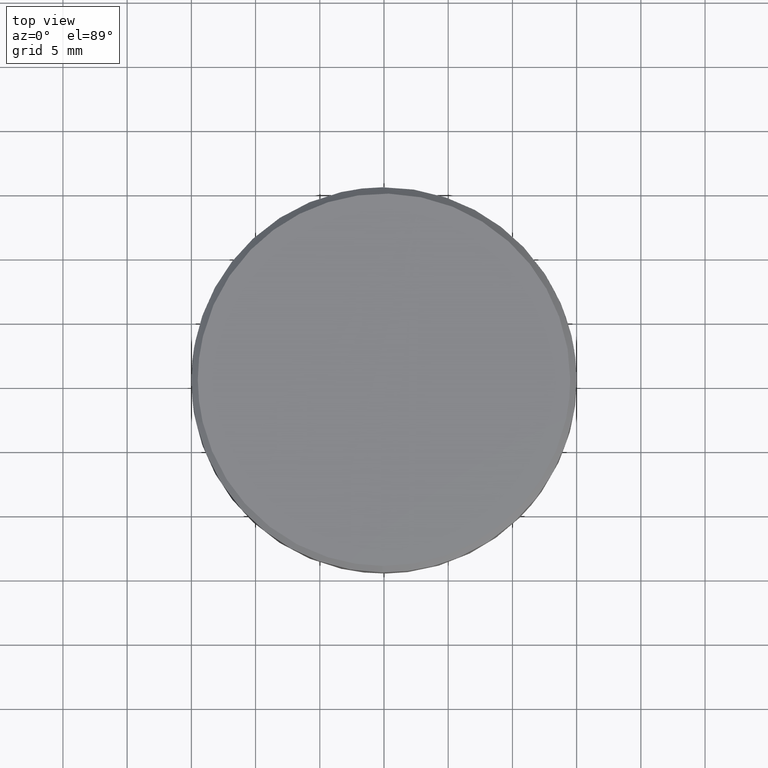
[diagram: clean part render]
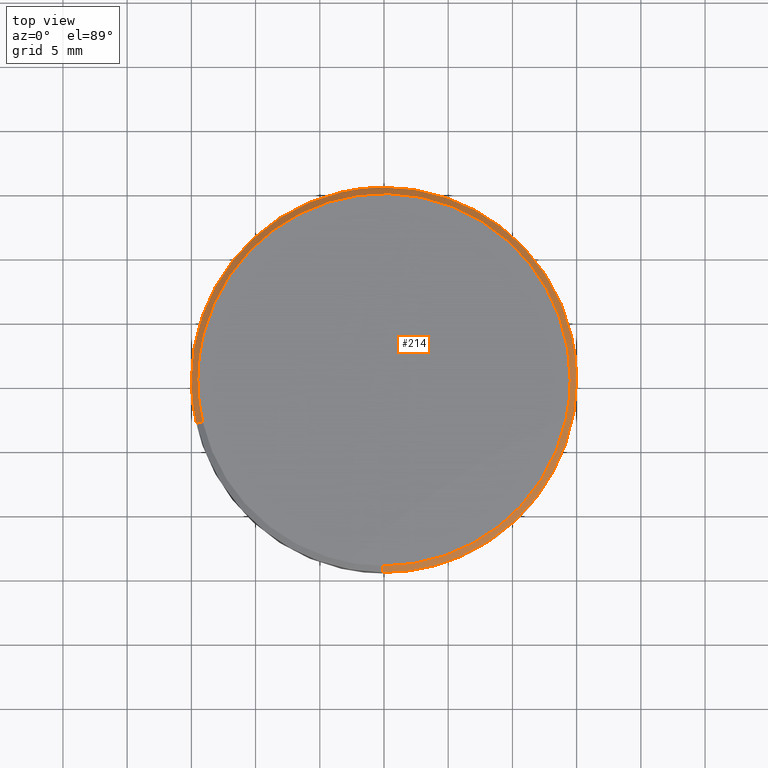
[diagram: same view with one face highlighted and labeled with its STEP entity id]
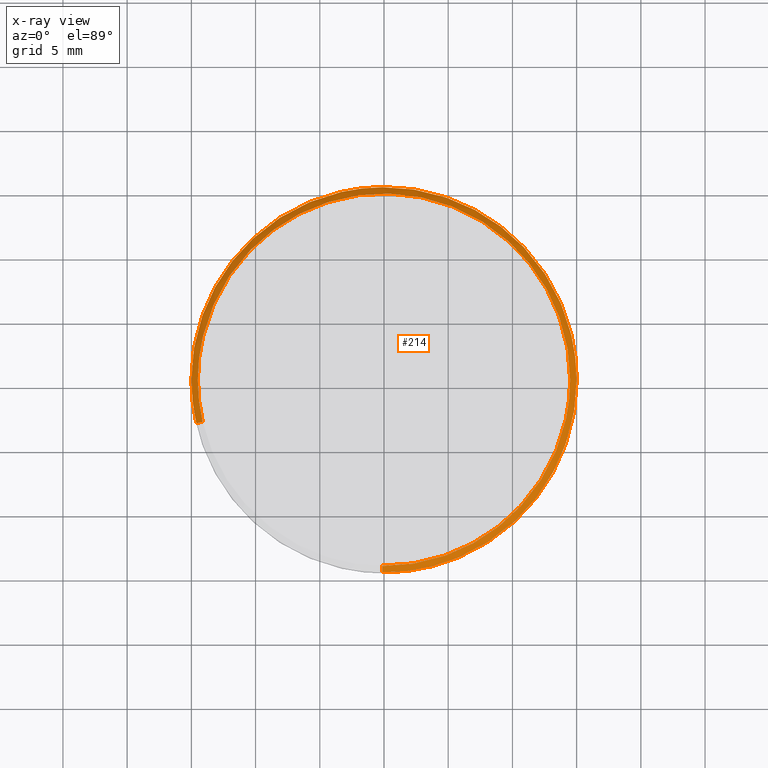
[diagram: x-ray of the same camera — body ghosted, the highlighted face saturated]
A machine part, top view. The second image highlights one B-rep face of the part: STEP entity #214.
The next image is the same camera in x-ray: the body ghosted, the highlighted face saturated — about 0% of this face is hidden behind the body in this view.
In plain terms, the highlighted face is a freeform B-spline surface patch.
Its self-contained STEP definition (entity closure, byte-faithful):
#44=CARTESIAN_POINT('',(-14.113985494174887,-3.268496553497049,18.012499999999999));
#45=CARTESIAN_POINT('',(-14.501955050900259,-1.593170725190882,18.012499999999999));
#46=CARTESIAN_POINT('',(-14.486948360392230,0.126425683032692,18.012499999999999));
#47=CARTESIAN_POINT('',(-14.360522677359546,14.613374043424921,18.012500000000003));
#48=CARTESIAN_POINT('',(0.126425683032692,14.486948360392230,18.012499999999999));
#49=CARTESIAN_POINT('',(14.613374043424921,14.360522677359546,18.012500000000003));
#50=CARTESIAN_POINT('',(14.486948360392230,-0.126425683032692,18.012499999999999));
#51=CARTESIAN_POINT('',(14.360522677359546,-14.613374043424921,18.012500000000003));
#52=CARTESIAN_POINT('',(-0.126425683032692,-14.486948360392230,18.012499999999999));
#53=CARTESIAN_POINT('',(-14.625754467766466,-3.387011279692647,17.487187499999997));
#54=CARTESIAN_POINT('',(-15.027791686805363,-1.650938628319562,17.487187500000001));
#55=CARTESIAN_POINT('',(-15.012240858101830,0.131009841211681,17.487187500000001));
#56=CARTESIAN_POINT('',(-14.881231016890139,15.143250699313507,17.487187500000001));
#57=CARTESIAN_POINT('',(0.131009841211681,15.012240858101830,17.487187500000001));
#58=CARTESIAN_POINT('',(15.143250699313507,14.881231016890139,17.487187500000001));
#59=CARTESIAN_POINT('',(15.012240858101830,-0.131009841211681,17.487187500000001));
#60=CARTESIAN_POINT('',(14.881231016890139,-15.143250699313507,17.487187500000001));
#61=CARTESIAN_POINT('',(-0.131009841211681,-15.012240858101830,17.487187500000001));
#69=(BOUNDED_SURFACE()B_SPLINE_SURFACE(2,1,((#44,#53),(#45,#54),(#46,#55),(#47,#56),(#48,#57),(#49,#58),(#50,#59),(#51,#60),(#52,#61)),.UNSPECIFIED.,.F.,.F.,.U.)B_SPLINE_SURFACE_WITH_KNOTS((3,2,2,2,3),(2,2),(0.0,3.979846749993173,28.853888937450488,53.727931124907812,78.601973312365132),(0.0,1.0),.UNSPECIFIED.)GEOMETRIC_REPRESENTATION_ITEM()RATIONAL_B_SPLINE_SURFACE(((0.921270302782944,0.921270302782944),(0.953137084989848,0.953137084989848),(1.0,1.0),(0.707106781186548,0.707106781186548),(1.0,1.0),(0.707106781186548,0.707106781186548),(1.0,1.0),(0.707106781186548,0.707106781186548),(1.0,1.0)))REPRESENTATION_ITEM('')SURFACE());
#70=CARTESIAN_POINT('',(-14.613272297676840,-3.384120676632547,17.499999999997950));
#71=VERTEX_POINT('',#70);
#72=CARTESIAN_POINT('',(-15.0,0.0,17.500000000000000));
#73=VERTEX_POINT('',#72);
#74=CARTESIAN_POINT('',(-14.613272297676838,-3.384120676632548,17.499999999997950));
#75=CARTESIAN_POINT('',(-14.999999999999996,-1.714157410214153,17.500000000000004));
#76=CARTESIAN_POINT('',(-15.0,0.0,17.500000000000000));
#84=(BOUNDED_CURVE()B_SPLINE_CURVE(2,(#74,#75,#76),.UNSPECIFIED.,.F.,.U.)B_SPLINE_CURVE_WITH_KNOTS((3,3),(0.961422971784221,1.0),.UNSPECIFIED.)CURVE()GEOMETRIC_REPRESENTATION_ITEM()RATIONAL_B_SPLINE_CURVE((0.923556557442156,0.954804200134492,1.0))REPRESENTATION_ITEM(''));
#85=EDGE_CURVE('',#71,#73,#84,.T.);
#86=ORIENTED_EDGE('',*,*,#85,.F.);
#87=CARTESIAN_POINT('',(-14.126163221086429,-3.271316654088644,17.999999999996831));
#88=VERTEX_POINT('',#87);
#89=CARTESIAN_POINT('',(-14.126163221086429,-3.271316654088644,17.999999999996831));
#90=CARTESIAN_POINT('',(-14.613272297676840,-3.384120676632547,17.499999999997950));
#91=QUASI_UNIFORM_CURVE('',1,(#89,#90),.UNSPECIFIED.,.F.,.U.);
#92=EDGE_CURVE('',#88,#71,#91,.T.);
#93=ORIENTED_EDGE('',*,*,#92,.F.);
#94=CARTESIAN_POINT('',(-14.500000000000000,0.0,18.0));
#95=VERTEX_POINT('',#94);
#96=CARTESIAN_POINT('',(-14.500000000000000,0.0,18.0));
#97=CARTESIAN_POINT('',(-14.500000000000004,-1.657018829884324,18.000000000000004));
#98=CARTESIAN_POINT('',(-14.126163221086427,-3.271316654088645,17.999999999996835));
#106=(BOUNDED_CURVE()B_SPLINE_CURVE(2,(#96,#97,#98),.UNSPECIFIED.,.F.,.U.)B_SPLINE_CURVE_WITH_KNOTS((3,3),(0.500000000000000,0.538577028216016),.UNSPECIFIED.)CURVE()GEOMETRIC_REPRESENTATION_ITEM()RATIONAL_B_SPLINE_CURVE((1.0,0.954804200134215,0.923556557441772))REPRESENTATION_ITEM(''));
#107=EDGE_CURVE('',#95,#88,#106,.T.);
#108=ORIENTED_EDGE('',*,*,#107,.F.);
#109=CARTESIAN_POINT('',(14.500000000000000,0.0,18.0));
#110=VERTEX_POINT('',#109);
#111=CARTESIAN_POINT('',(14.500000000000000,0.0,18.0));
#112=CARTESIAN_POINT('',(14.500000000000000,14.500000000000000,18.000000000000007));
#113=CARTESIAN_POINT('',(0.0,14.500000000000000,18.0));
#114=CARTESIAN_POINT('',(-14.500000000000000,14.500000000000000,18.000000000000007));
#115=CARTESIAN_POINT('',(-14.500000000000000,0.0,18.0));
#123=(BOUNDED_CURVE()B_SPLINE_CURVE(2,(#111,#112,#113,#114,#115),.UNSPECIFIED.,.F.,.U.)B_SPLINE_CURVE_WITH_KNOTS((3,2,3),(0.0,0.250000000000000,0.500000000000000),.UNSPECIFIED.)CURVE()GEOMETRIC_REPRESENTATION_ITEM()RATIONAL_B_SPLINE_CURVE((1.0,0.707106781186548,1.0,0.707106781186548,1.0))REPRESENTATION_ITEM(''));
#124=EDGE_CURVE('',#110,#95,#123,.T.);
#125=ORIENTED_EDGE('',*,*,#124,.F.);
#126=CARTESIAN_POINT('',(-0.126534764762240,-14.499447884435060,17.999999999995140));
#127=VERTEX_POINT('',#126);
#128=CARTESIAN_POINT('',(-0.126534764762240,-14.499447884435062,17.999999999995136));
#129=CARTESIAN_POINT('',(-0.063268586935950,-14.500000000000002,18.000000000000004));
#130=CARTESIAN_POINT('',(0.0,-14.500000000000000,18.0));
#131=CARTESIAN_POINT('',(14.500000000000000,-14.500000000000000,18.000000000000007));
#132=CARTESIAN_POINT('',(14.500000000000000,0.0,18.0));
#140=(BOUNDED_CURVE()B_SPLINE_CURVE(2,(#128,#129,#130,#131,#132),.UNSPECIFIED.,.F.,.U.)B_SPLINE_CURVE_WITH_KNOTS((3,2,3),(0.748460105664144,0.750000000000000,1.0),.UNSPECIFIED.)CURVE()GEOMETRIC_REPRESENTATION_ITEM()RATIONAL_B_SPLINE_CURVE((0.996414028098394,0.998195901565354,1.0,0.707106781186548,1.0))REPRESENTATION_ITEM(''));
#141=EDGE_CURVE('',#127,#110,#140,.T.);
#142=ORIENTED_EDGE('',*,*,#141,.F.);
#143=CARTESIAN_POINT('',(-0.130898032526533,-14.999428845969049,17.499999999993079));
#144=VERTEX_POINT('',#143);
#145=CARTESIAN_POINT('',(-0.126534764762240,-14.499447884435060,17.999999999995140));
#146=CARTESIAN_POINT('',(-0.130898032526533,-14.999428845969049,17.499999999993079));
#147=QUASI_UNIFORM_CURVE('',1,(#145,#146),.UNSPECIFIED.,.F.,.U.);
#148=EDGE_CURVE('',#127,#144,#147,.T.);
#149=ORIENTED_EDGE('',*,*,#148,.T.);
#150=CARTESIAN_POINT('',(1.861913014048360,-14.883994085193240,17.500000000000082));
#151=VERTEX_POINT('',#150);
#152=CARTESIAN_POINT('',(1.861913014048360,-14.883994085193237,17.500000000000075));
#153=CARTESIAN_POINT('',(0.934570363355979,-15.000000000000005,17.500000000000000));
#154=CARTESIAN_POINT('',(0.0,-15.0,17.500000000000000));
#155=CARTESIAN_POINT('',(-0.065450262361395,-15.000000000000005,17.500000000000004));
#156=CARTESIAN_POINT('',(-0.130898032526533,-14.999428845969051,17.499999999993079));
#164=(BOUNDED_CURVE()B_SPLINE_CURVE(2,(#152,#153,#154,#155,#156),.UNSPECIFIED.,.F.,.U.)B_SPLINE_CURVE_WITH_KNOTS((3,2,3),(0.728526150538448,0.750000000000000,0.751539894336182),.UNSPECIFIED.)CURVE()GEOMETRIC_REPRESENTATION_ITEM()RATIONAL_B_SPLINE_CURVE((0.954005584571298,0.974841820443562,1.0,0.998195901564972,0.996414028097641))REPRESENTATION_ITEM(''));
#165=EDGE_CURVE('',#151,#144,#164,.T.);
#166=ORIENTED_EDGE('',*,*,#165,.F.);
#167=CARTESIAN_POINT('',(15.0,0.0,17.500000000000000));
#168=VERTEX_POINT('',#167);
#169=CARTESIAN_POINT('',(15.0,0.0,17.500000000000000));
#170=CARTESIAN_POINT('',(15.000000000000004,-13.240485293211602,17.500000000000000));
#171=CARTESIAN_POINT('',(1.861913014048360,-14.883994085193237,17.500000000000075));
#179=(BOUNDED_CURVE()B_SPLINE_CURVE(2,(#169,#170,#171),.UNSPECIFIED.,.F.,.U.)B_SPLINE_CURVE_WITH_KNOTS((3,3),(0.500000000000000,0.728526150538448),.UNSPECIFIED.)CURVE()GEOMETRIC_REPRESENTATION_ITEM()RATIONAL_B_SPLINE_CURVE((1.0,0.732264960742985,0.954005584571298))REPRESENTATION_ITEM(''));
#180=EDGE_CURVE('',#168,#151,#179,.T.);
#181=ORIENTED_EDGE('',*,*,#180,.F.);
#182=CARTESIAN_POINT('',(-0.130886080069205,14.999428950260111,17.500000000000028));
#183=VERTEX_POINT('',#182);
#184=CARTESIAN_POINT('',(-0.130886080069205,14.999428950260111,17.500000000000025));
#185=CARTESIAN_POINT('',(-0.065444285766026,14.999999999999996,17.500000000000000));
#186=CARTESIAN_POINT('',(0.0,15.0,17.500000000000000));
#187=CARTESIAN_POINT('',(14.999999999999996,14.999999999999996,17.500000000000000));
#188=CARTESIAN_POINT('',(15.0,0.0,17.500000000000000));
#196=(BOUNDED_CURVE()B_SPLINE_CURVE(2,(#184,#185,#186,#187,#188),.UNSPECIFIED.,.F.,.U.)B_SPLINE_CURVE_WITH_KNOTS((3,2,3),(0.248460246025718,0.250000000000000,0.500000000000000),.UNSPECIFIED.)CURVE()GEOMETRIC_REPRESENTATION_ITEM()RATIONAL_B_SPLINE_CURVE((0.996414352934588,0.998196066009167,1.0,0.707106781186547,1.0))REPRESENTATION_ITEM(''));
#197=EDGE_CURVE('',#183,#168,#196,.T.);
#198=ORIENTED_EDGE('',*,*,#197,.F.);
#199=CARTESIAN_POINT('',(-15.0,0.0,17.500000000000000));
#200=CARTESIAN_POINT('',(-15.000000000000002,14.869680008386101,17.500000000000000));
#201=CARTESIAN_POINT('',(-0.130886080069205,14.999428950260111,17.500000000000025));
#209=(BOUNDED_CURVE()B_SPLINE_CURVE(2,(#199,#200,#201),.UNSPECIFIED.,.F.,.U.)B_SPLINE_CURVE_WITH_KNOTS((3,3),(0.0,0.248460246025718),.UNSPECIFIED.)CURVE()GEOMETRIC_REPRESENTATION_ITEM()RATIONAL_B_SPLINE_CURVE((1.0,0.708910715177381,0.996414352934588))REPRESENTATION_ITEM(''));
#210=EDGE_CURVE('',#73,#183,#209,.T.);
#211=ORIENTED_EDGE('',*,*,#210,.F.);
#212=EDGE_LOOP('',(#86,#93,#108,#125,#142,#149,#166,#181,#198,#211));
#213=FACE_OUTER_BOUND('',#212,.T.);
#214=ADVANCED_FACE('',(#213),#69,.T.);